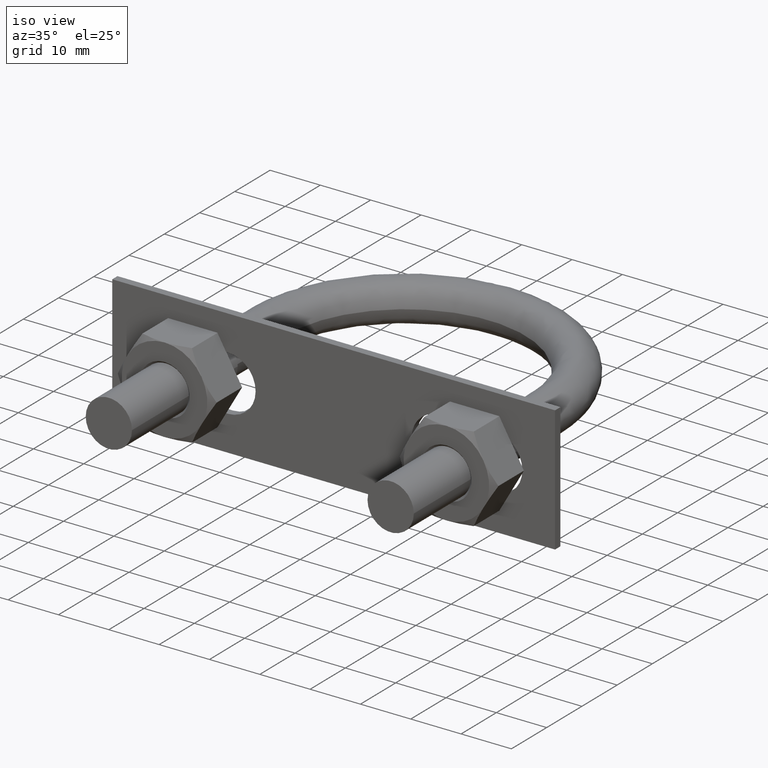
[diagram: clean part render]
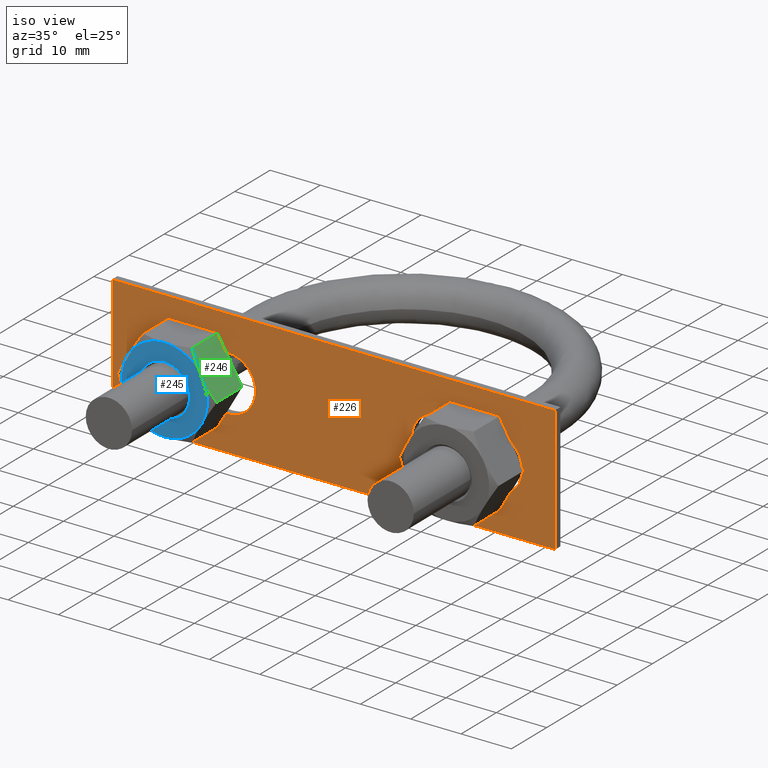
[diagram: same view with three faces highlighted in distinct colors, each labeled with its STEP entity id]
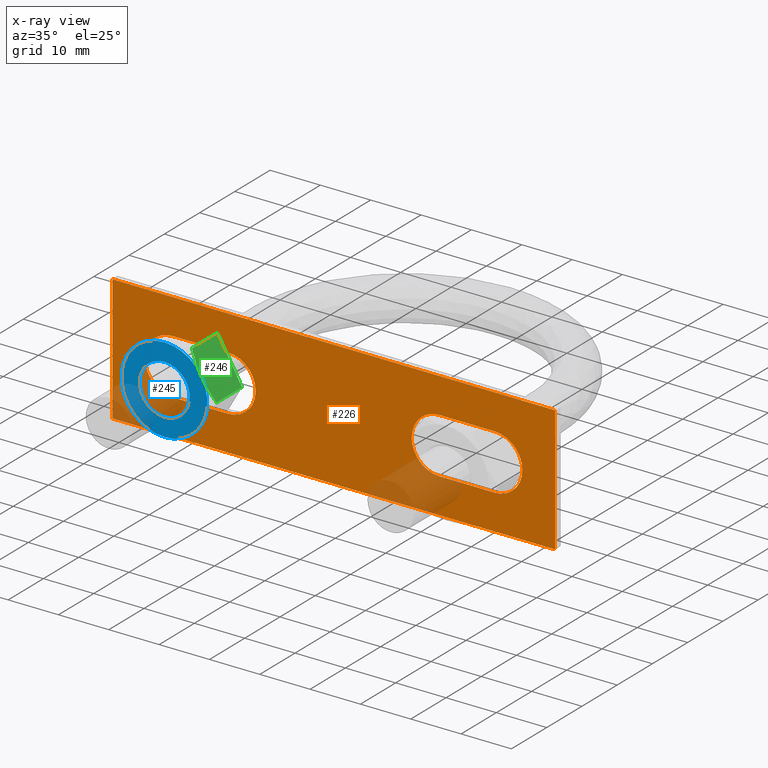
[diagram: x-ray of the same camera — body ghosted, the three highlighted faces saturated]
A machine part, iso view with three faces highlighted in distinct colors.
The next image is the same camera in x-ray (body ghosted, the three faces saturated) — at least one of them is partly hidden behind the body in this view.
Their STEP definitions:

[orange] entity #226 — the highlighted planar face has unit normal (0, -1, 0).
#226 = ADVANCED_FACE( '', ( #310, #311, #312 ), #313, .T. );
#310 = FACE_BOUND( '', #620, .T. );
#311 = FACE_OUTER_BOUND( '', #621, .T. );
#312 = FACE_BOUND( '', #622, .T. );
#313 = PLANE( '', #623 );
#620 = EDGE_LOOP( '', ( #792, #793, #794, #795, #796, #797 ) );
#621 = EDGE_LOOP( '', ( #798, #799, #800, #801 ) );
#622 = EDGE_LOOP( '', ( #802, #803, #804, #805, #806, #807 ) );
#623 = AXIS2_PLACEMENT_3D( '', #808, #809, #810 );
#792 = ORIENTED_EDGE( '', *, *, #1294, .F. );
#793 = ORIENTED_EDGE( '', *, *, #1295, .F. );
#794 = ORIENTED_EDGE( '', *, *, #1296, .F. );
#795 = ORIENTED_EDGE( '', *, *, #1297, .F. );
#796 = ORIENTED_EDGE( '', *, *, #1298, .F. );
#797 = ORIENTED_EDGE( '', *, *, #1299, .F. );
#798 = ORIENTED_EDGE( '', *, *, #1300, .T. );
#799 = ORIENTED_EDGE( '', *, *, #1301, .T. );
#800 = ORIENTED_EDGE( '', *, *, #1302, .T. );
#801 = ORIENTED_EDGE( '', *, *, #1303, .T. );
#802 = ORIENTED_EDGE( '', *, *, #1304, .F. );
#803 = ORIENTED_EDGE( '', *, *, #1305, .F. );
#804 = ORIENTED_EDGE( '', *, *, #1306, .F. );
#805 = ORIENTED_EDGE( '', *, *, #1307, .F. );
#806 = ORIENTED_EDGE( '', *, *, #1308, .F. );
#807 = ORIENTED_EDGE( '', *, *, #1309, .F. );
#808 = CARTESIAN_POINT( '', ( -44.0000000000000, -6.20000000000000, -12.5000000000000 ) );
#809 = DIRECTION( '', ( 0.000000000000000, -1.00000000000000, 6.12303176911189E-017 ) );
#810 = DIRECTION( '', ( 0.000000000000000, -6.12303176911189E-017, -1.00000000000000 ) );
#1294 = EDGE_CURVE( '', #1458, #1459, #1460, .F. );
#1295 = EDGE_CURVE( '', #1461, #1458, #1462, .F. );
#1296 = EDGE_CURVE( '', #1463, #1461, #1464, .F. );
#1297 = EDGE_CURVE( '', #1465, #1463, #1466, .F. );
#1298 = EDGE_CURVE( '', #1467, #1465, #1468, .F. );
#1299 = EDGE_CURVE( '', #1459, #1467, #1469, .F. );
#1300 = EDGE_CURVE( '', #1470, #1471, #1472, .T. );
#1301 = EDGE_CURVE( '', #1471, #1473, #1474, .T. );
#1302 = EDGE_CURVE( '', #1473, #1475, #1476, .T. );
#1303 = EDGE_CURVE( '', #1475, #1470, #1477, .T. );
#1304 = EDGE_CURVE( '', #1478, #1479, #1480, .F. );
#1305 = EDGE_CURVE( '', #1481, #1478, #1482, .F. );
#1306 = EDGE_CURVE( '', #1483, #1481, #1484, .F. );
#1307 = EDGE_CURVE( '', #1485, #1483, #1486, .F. );
#1308 = EDGE_CURVE( '', #1487, #1485, #1488, .F. );
#1309 = EDGE_CURVE( '', #1479, #1487, #1489, .F. );
#1458 = VERTEX_POINT( '', #1740 );
#1459 = VERTEX_POINT( '', #1741 );
#1460 = LINE( '', #1742, #1743 );
#1461 = VERTEX_POINT( '', #1744 );
#1462 = CIRCLE( '', #1745, 5.50000000000000 );
#1463 = VERTEX_POINT( '', #1746 );
#1464 = CIRCLE( '', #1747, 5.50000000000000 );
#1465 = VERTEX_POINT( '', #1748 );
#1466 = LINE( '', #1749, #1750 );
#1467 = VERTEX_POINT( '', #1751 );
#1468 = CIRCLE( '', #1752, 5.50000000000000 );
#1469 = CIRCLE( '', #1753, 5.50000000000000 );
#1470 = VERTEX_POINT( '', #1754 );
#1471 = VERTEX_POINT( '', #1755 );
#1472 = LINE( '', #1756, #1757 );
#1473 = VERTEX_POINT( '', #1758 );
#1474 = LINE( '', #1759, #1760 );
#1475 = VERTEX_POINT( '', #1761 );
#1476 = LINE( '', #1762, #1763 );
#1477 = LINE( '', #1764, #1765 );
#1478 = VERTEX_POINT( '', #1766 );
#1479 = VERTEX_POINT( '', #1767 );
#1480 = LINE( '', #1768, #1769 );
#1481 = VERTEX_POINT( '', #1770 );
#1482 = CIRCLE( '', #1771, 5.50000000000000 );
#1483 = VERTEX_POINT( '', #1772 );
#1484 = CIRCLE( '', #1773, 5.50000000000000 );
#1485 = VERTEX_POINT( '', #1774 );
#1486 = LINE( '', #1775, #1776 );
#1487 = VERTEX_POINT( '', #1777 );
#1488 = CIRCLE( '', #1778, 5.50000000000000 );
#1489 = CIRCLE( '', #1779, 5.50000000000000 );
#1740 = CARTESIAN_POINT( '', ( -32.0000000000000, -6.20000000000000, -5.50000000000000 ) );
#1741 = CARTESIAN_POINT( '', ( -21.0000000000000, -6.20000000000000, -5.50000000000000 ) );
#1742 = CARTESIAN_POINT( '', ( -32.0000000000000, -6.20000000000000, -5.50000000000000 ) );
#1743 = VECTOR( '', #2208, 1000.00000000000 );
#1744 = CARTESIAN_POINT( '', ( -37.5000000000000, -6.20000000000000, -2.23987420923604E-015 ) );
#1745 = AXIS2_PLACEMENT_3D( '', #2209, #2210, #2211 );
#1746 = CARTESIAN_POINT( '', ( -32.0000000000000, -6.20000000000000, 5.50000000000000 ) );
#1747 = AXIS2_PLACEMENT_3D( '', #2212, #2213, #2214 );
#1748 = CARTESIAN_POINT( '', ( -21.0000000000000, -6.20000000000000, 5.50000000000000 ) );
#1749 = CARTESIAN_POINT( '', ( -21.0000000000000, -6.20000000000000, 5.50000000000000 ) );
#1750 = VECTOR( '', #2215, 1000.00000000000 );
#1751 = CARTESIAN_POINT( '', ( -15.5000000000000, -6.20000000000000, -1.56634071463373E-015 ) );
#1752 = AXIS2_PLACEMENT_3D( '', #2216, #2217, #2218 );
#1753 = AXIS2_PLACEMENT_3D( '', #2219, #2220, #2221 );
#1754 = CARTESIAN_POINT( '', ( -44.0000000000000, -6.20000000000000, 12.5000000000000 ) );
#1755 = CARTESIAN_POINT( '', ( -44.0000000000000, -6.20000000000000, -12.5000000000000 ) );
#1756 = CARTESIAN_POINT( '', ( -44.0000000000000, -6.20000000000000, 12.5000000000000 ) );
#1757 = VECTOR( '', #2222, 1000.00000000000 );
#1758 = CARTESIAN_POINT( '', ( 44.0000000000000, -6.20000000000000, -12.5000000000000 ) );
#1759 = CARTESIAN_POINT( '', ( -44.0000000000000, -6.20000000000000, -12.5000000000000 ) );
#1760 = VECTOR( '', #2223, 1000.00000000000 );
#1761 = CARTESIAN_POINT( '', ( 44.0000000000000, -6.20000000000000, 12.5000000000000 ) );
#1762 = CARTESIAN_POINT( '', ( 44.0000000000000, -6.20000000000000, -12.5000000000000 ) );
#1763 = VECTOR( '', #2224, 1000.00000000000 );
#1764 = CARTESIAN_POINT( '', ( 44.0000000000000, -6.20000000000000, 12.5000000000000 ) );
#1765 = VECTOR( '', #2225, 1000.00000000000 );
#1766 = CARTESIAN_POINT( '', ( 21.0000000000000, -6.20000000000000, -5.50000000000000 ) );
#1767 = CARTESIAN_POINT( '', ( 32.0000000000000, -6.20000000000000, -5.50000000000000 ) );
#1768 = CARTESIAN_POINT( '', ( 21.0000000000000, -6.20000000000000, -5.50000000000000 ) );
#1769 = VECTOR( '', #2226, 1000.00000000000 );
#1770 = CARTESIAN_POINT( '', ( 15.5000000000000, -6.20000000000000, -2.23987420923604E-015 ) );
#1771 = AXIS2_PLACEMENT_3D( '', #2227, #2228, #2229 );
#1772 = CARTESIAN_POINT( '', ( 21.0000000000000, -6.20000000000000, 5.50000000000000 ) );
#1773 = AXIS2_PLACEMENT_3D( '', #2230, #2231, #2232 );
#1774 = CARTESIAN_POINT( '', ( 32.0000000000000, -6.20000000000000, 5.50000000000000 ) );
#1775 = CARTESIAN_POINT( '', ( 32.0000000000000, -6.20000000000000, 5.50000000000000 ) );
#1776 = VECTOR( '', #2233, 1000.00000000000 );
#1777 = CARTESIAN_POINT( '', ( 37.5000000000000, -6.20000000000000, -1.56634071463373E-015 ) );
#1778 = AXIS2_PLACEMENT_3D( '', #2234, #2235, #2236 );
#1779 = AXIS2_PLACEMENT_3D( '', #2237, #2238, #2239 );
#2208 = DIRECTION( '', ( -1.00000000000000, -1.65175178900686E-081, -2.69760447322722E-065 ) );
#2209 = CARTESIAN_POINT( '', ( -32.0000000000000, -6.20000000000000, -1.73472408828431E-015 ) );
#2210 = DIRECTION( '', ( 0.000000000000000, 1.00000000000000, -6.12303176911189E-017 ) );
#2211 = DIRECTION( '', ( 0.000000000000000, 6.12303176911189E-017, 1.00000000000000 ) );
#2212 = CARTESIAN_POINT( '', ( -32.0000000000000, -6.20000000000000, -1.73472408828431E-015 ) );
#2213 = DIRECTION( '', ( 0.000000000000000, 1.00000000000000, -6.12303176911189E-017 ) );
#2214 = DIRECTION( '', ( 0.000000000000000, 6.12303176911189E-017, 1.00000000000000 ) );
#2215 = DIRECTION( '', ( 1.00000000000000, 1.65175178900686E-081, 2.69760447322722E-065 ) );
#2216 = CARTESIAN_POINT( '', ( -21.0000000000000, -6.20000000000000, -1.73472408828431E-015 ) );
#2217 = DIRECTION( '', ( 0.000000000000000, 1.00000000000000, -6.12303176911189E-017 ) );
#2218 = DIRECTION( '', ( 0.000000000000000, 6.12303176911189E-017, 1.00000000000000 ) );
#2219 = CARTESIAN_POINT( '', ( -21.0000000000000, -6.20000000000000, -1.73472408828431E-015 ) );
#2220 = DIRECTION( '', ( 0.000000000000000, 1.00000000000000, -6.12303176911189E-017 ) );
#2221 = DIRECTION( '', ( 0.000000000000000, 6.12303176911189E-017, 1.00000000000000 ) );
#2222 = DIRECTION( '', ( 0.000000000000000, -6.12303176911189E-017, -1.00000000000000 ) );
#2223 = DIRECTION( '', ( 1.00000000000000, 0.000000000000000, 0.000000000000000 ) );
#2224 = DIRECTION( '', ( 0.000000000000000, 6.12303176911189E-017, 1.00000000000000 ) );
#2225 = DIRECTION( '', ( -1.00000000000000, 0.000000000000000, 0.000000000000000 ) );
#2226 = DIRECTION( '', ( -1.00000000000000, 0.000000000000000, 0.000000000000000 ) );
#2227 = CARTESIAN_POINT( '', ( 21.0000000000000, -6.20000000000000, -1.73472408828431E-015 ) );
#2228 = DIRECTION( '', ( 0.000000000000000, 1.00000000000000, -6.12303176911189E-017 ) );
#2229 = DIRECTION( '', ( 0.000000000000000, 6.12303176911189E-017, 1.00000000000000 ) );
#2230 = CARTESIAN_POINT( '', ( 21.0000000000000, -6.20000000000000, -1.73472408828431E-015 ) );
#2231 = DIRECTION( '', ( 0.000000000000000, 1.00000000000000, -6.12303176911189E-017 ) );
#2232 = DIRECTION( '', ( 0.000000000000000, 6.12303176911189E-017, 1.00000000000000 ) );
#2233 = DIRECTION( '', ( 1.00000000000000, 0.000000000000000, 0.000000000000000 ) );
#2234 = CARTESIAN_POINT( '', ( 32.0000000000000, -6.20000000000000, -1.73472408828431E-015 ) );
#2235 = DIRECTION( '', ( 0.000000000000000, 1.00000000000000, -6.12303176911189E-017 ) );
#2236 = DIRECTION( '', ( 0.000000000000000, 6.12303176911189E-017, 1.00000000000000 ) );
#2237 = CARTESIAN_POINT( '', ( 32.0000000000000, -6.20000000000000, -1.73472408828431E-015 ) );
#2238 = DIRECTION( '', ( 0.000000000000000, 1.00000000000000, -6.12303176911189E-017 ) );
#2239 = DIRECTION( '', ( 0.000000000000000, 6.12303176911189E-017, 1.00000000000000 ) );

[blue] entity #245 — the highlighted planar face has unit normal (0, 1, 0).
#245 = ADVANCED_FACE( '', ( #352, #353 ), #354, .F. );
#352 = FACE_OUTER_BOUND( '', #662, .T. );
#353 = FACE_BOUND( '', #663, .T. );
#354 = PLANE( '', #664 );
#662 = EDGE_LOOP( '', ( #949, #950, #951, #952, #953, #954 ) );
#663 = EDGE_LOOP( '', ( #955 ) );
#664 = AXIS2_PLACEMENT_3D( '', #956, #957, #958 );
#949 = ORIENTED_EDGE( '', *, *, #1346, .F. );
#950 = ORIENTED_EDGE( '', *, *, #1347, .F. );
#951 = ORIENTED_EDGE( '', *, *, #1348, .F. );
#952 = ORIENTED_EDGE( '', *, *, #1349, .F. );
#953 = ORIENTED_EDGE( '', *, *, #1344, .F. );
#954 = ORIENTED_EDGE( '', *, *, #1350, .F. );
#955 = ORIENTED_EDGE( '', *, *, #1351, .T. );
#956 = CARTESIAN_POINT( '', ( -28.0000000000000, -14.2000000000000, 3.96143216892173E-065 ) );
#957 = DIRECTION( '', ( 6.12303176911189E-017, 1.00000000000000, 0.000000000000000 ) );
#958 = DIRECTION( '', ( 3.74915180455534E-033, -2.29561756065155E-049, -1.00000000000000 ) );
#1344 = EDGE_CURVE( '', #1541, #1543, #1544, .T. );
#1346 = EDGE_CURVE( '', #1546, #1547, #1548, .T. );
#1347 = EDGE_CURVE( '', #1549, #1546, #1550, .T. );
#1348 = EDGE_CURVE( '', #1551, #1549, #1552, .T. );
#1349 = EDGE_CURVE( '', #1543, #1551, #1553, .T. );
#1350 = EDGE_CURVE( '', #1547, #1541, #1554, .T. );
#1351 = EDGE_CURVE( '', #1555, #1555, #1556, .T. );
#1541 = VERTEX_POINT( '', #1855 );
#1543 = VERTEX_POINT( '', #1862 );
#1544 = CIRCLE( '', #1863, 8.50000000000000 );
#1546 = VERTEX_POINT( '', #1872 );
#1547 = VERTEX_POINT( '', #1873 );
#1548 = CIRCLE( '', #1874, 8.50000000000000 );
#1549 = VERTEX_POINT( '', #1875 );
#1550 = CIRCLE( '', #1876, 8.50000000000000 );
#1551 = VERTEX_POINT( '', #1877 );
#1552 = CIRCLE( '', #1878, 8.50000000000000 );
#1553 = CIRCLE( '', #1879, 8.50000000000000 );
#1554 = CIRCLE( '', #1880, 8.50000000000000 );
#1555 = VERTEX_POINT( '', #1881 );
#1556 = CIRCLE( '', #1882, 5.00000000000000 );
#1855 = CARTESIAN_POINT( '', ( -28.0000000000000, -14.2000000000000, 8.50000000000000 ) );
#1862 = CARTESIAN_POINT( '', ( -20.6387840678323, -14.2000000000000, 4.25000000000000 ) );
#1863 = AXIS2_PLACEMENT_3D( '', #2291, #2292, #2293 );
#1872 = CARTESIAN_POINT( '', ( -35.3612159321677, -14.2000000000000, -4.25000000000000 ) );
#1873 = CARTESIAN_POINT( '', ( -35.3612159321677, -14.2000000000000, 4.25000000000000 ) );
#1874 = AXIS2_PLACEMENT_3D( '', #2294, #2295, #2296 );
#1875 = CARTESIAN_POINT( '', ( -28.0000000000000, -14.2000000000000, -8.50000000000000 ) );
#1876 = AXIS2_PLACEMENT_3D( '', #2297, #2298, #2299 );
#1877 = CARTESIAN_POINT( '', ( -20.6387840678323, -14.2000000000000, -4.25000000000000 ) );
#1878 = AXIS2_PLACEMENT_3D( '', #2300, #2301, #2302 );
#1879 = AXIS2_PLACEMENT_3D( '', #2303, #2304, #2305 );
#1880 = AXIS2_PLACEMENT_3D( '', #2306, #2307, #2308 );
#1881 = CARTESIAN_POINT( '', ( -28.0000000000000, -14.2000000000000, -5.00000000000000 ) );
#1882 = AXIS2_PLACEMENT_3D( '', #2309, #2310, #2311 );
#2291 = CARTESIAN_POINT( '', ( -28.0000000000000, -14.2000000000000, 3.96143216892173E-065 ) );
#2292 = DIRECTION( '', ( 6.12303176911189E-017, 1.00000000000000, 6.72903901152805E-065 ) );
#2293 = DIRECTION( '', ( 3.74915180455534E-033, -2.29561756065155E-049, -1.00000000000000 ) );
#2294 = CARTESIAN_POINT( '', ( -28.0000000000000, -14.2000000000000, 3.96143216892173E-065 ) );
#2295 = DIRECTION( '', ( 6.12303176911189E-017, 1.00000000000000, 6.72903901152805E-065 ) );
#2296 = DIRECTION( '', ( 3.74915180455534E-033, -2.29561756065155E-049, -1.00000000000000 ) );
#2297 = CARTESIAN_POINT( '', ( -28.0000000000000, -14.2000000000000, 3.96143216892173E-065 ) );
#2298 = DIRECTION( '', ( 6.12303176911189E-017, 1.00000000000000, 6.72903901152805E-065 ) );
#2299 = DIRECTION( '', ( 3.74915180455534E-033, -2.29561756065155E-049, -1.00000000000000 ) );
#2300 = CARTESIAN_POINT( '', ( -28.0000000000000, -14.2000000000000, 3.96143216892173E-065 ) );
#2301 = DIRECTION( '', ( 6.12303176911189E-017, 1.00000000000000, 6.72903901152805E-065 ) );
#2302 = DIRECTION( '', ( 3.74915180455534E-033, -2.29561756065155E-049, -1.00000000000000 ) );
#2303 = CARTESIAN_POINT( '', ( -28.0000000000000, -14.2000000000000, 3.96143216892173E-065 ) );
#2304 = DIRECTION( '', ( 6.12303176911189E-017, 1.00000000000000, 6.72903901152805E-065 ) );
#2305 = DIRECTION( '', ( 3.74915180455534E-033, -2.29561756065155E-049, -1.00000000000000 ) );
#2306 = CARTESIAN_POINT( '', ( -28.0000000000000, -14.2000000000000, 3.96143216892173E-065 ) );
#2307 = DIRECTION( '', ( 6.12303176911189E-017, 1.00000000000000, 6.72903901152805E-065 ) );
#2308 = DIRECTION( '', ( 3.74915180455534E-033, -2.29561756065155E-049, -1.00000000000000 ) );
#2309 = CARTESIAN_POINT( '', ( -28.0000000000000, -14.2000000000000, 3.96143216892173E-065 ) );
#2310 = DIRECTION( '', ( 6.12303176911189E-017, 1.00000000000000, 4.86173068582902E-065 ) );
#2311 = DIRECTION( '', ( 3.74915180455535E-033, -2.29561756065155E-049, -1.00000000000000 ) );

[green] entity #246 — the highlighted planar face has unit normal (-0.866, 0, -0.5).
#246 = ADVANCED_FACE( '', ( #355 ), #356, .F. );
#355 = FACE_OUTER_BOUND( '', #665, .T. );
#356 = PLANE( '', #666 );
#665 = EDGE_LOOP( '', ( #959, #960, #961, #962, #963 ) );
#666 = AXIS2_PLACEMENT_3D( '', #964, #965, #966 );
#959 = ORIENTED_EDGE( '', *, *, #1345, .F. );
#960 = ORIENTED_EDGE( '', *, *, #1352, .F. );
#961 = ORIENTED_EDGE( '', *, *, #1353, .F. );
#962 = ORIENTED_EDGE( '', *, *, #1354, .F. );
#963 = ORIENTED_EDGE( '', *, *, #1355, .F. );
#964 = CARTESIAN_POINT( '', ( -23.0925227118882, -6.20000000000000, 8.50000000000000 ) );
#965 = DIRECTION( '', ( -0.866025403784439, 5.30270106023007E-017, -0.500000000000000 ) );
#966 = DIRECTION( '', ( -0.500000000000000, 3.06151588455594E-017, 0.866025403784439 ) );
#1345 = EDGE_CURVE( '', #1543, #1539, #1545, .T. );
#1352 = EDGE_CURVE( '', #1557, #1543, #1558, .T. );
#1353 = EDGE_CURVE( '', #1559, #1557, #1560, .F. );
#1354 = EDGE_CURVE( '', #1561, #1559, #1562, .T. );
#1355 = EDGE_CURVE( '', #1539, #1561, #1563, .T. );
#1539 = VERTEX_POINT( '', #1853 );
#1543 = VERTEX_POINT( '', #1862 );
#1545 = B_SPLINE_CURVE_WITH_KNOTS( '', 3, ( #1864, #1865, #1866, #1867, #1868, #1869, #1870, #1871 ), .UNSPECIFIED., .F., .F., ( 4, 2, 2, 4 ), ( 0.00493506423428099, 0.00616384870526321, 0.00739263317624543, 0.00985020211820987 ), .UNSPECIFIED. );
#1557 = VERTEX_POINT( '', #1883 );
#1558 = B_SPLINE_CURVE_WITH_KNOTS( '', 3, ( #1884, #1885, #1886, #1887, #1888, #1889 ), .UNSPECIFIED., .F., .F., ( 4, 2, 4 ), ( 4.83064900410421E-007, 0.00246777364959070, 0.00493506423428099 ), .UNSPECIFIED. );
#1559 = VERTEX_POINT( '', #1890 );
#1560 = LINE( '', #1891, #1892 );
#1561 = VERTEX_POINT( '', #1893 );
#1562 = LINE( '', #1894, #1895 );
#1563 = LINE( '', #1896, #1897 );
#1853 = CARTESIAN_POINT( '', ( -23.0775337474837, -13.4494446500535, 8.47403835209862 ) );
#1862 = CARTESIAN_POINT( '', ( -20.6387840678323, -14.2000000000000, 4.25000000000000 ) );
#1864 = CARTESIAN_POINT( '', ( -20.6387840678323, -14.2000000000000, 4.25000000000000 ) );
#1865 = CARTESIAN_POINT( '', ( -20.8456385394390, -14.2000000000000, 4.60828245459559 ) );
#1866 = CARTESIAN_POINT( '', ( -21.0535275305460, -14.1822887918237, 4.96835674952724 ) );
#1867 = CARTESIAN_POINT( '', ( -21.4647840563434, -14.1136978063788, 5.68067394715264 ) );
#1868 = CARTESIAN_POINT( '', ( -21.6690452347238, -14.0628883495806, 6.03446468612132 ) );
#1869 = CARTESIAN_POINT( '', ( -22.2782186306658, -13.8668505986087, 7.08958395851212 ) );
#1870 = CARTESIAN_POINT( '', ( -22.6795341003769, -13.6781746872645, 7.78468274191512 ) );
#1871 = CARTESIAN_POINT( '', ( -23.0775337474837, -13.4494446500535, 8.47403835209862 ) );
#1883 = CARTESIAN_POINT( '', ( -18.2000343881808, -13.4494446500535, 0.0259616479013807 ) );
#1884 = CARTESIAN_POINT( '', ( -18.2000343881808, -13.4494446500535, 0.0259616479013819 ) );
#1885 = CARTESIAN_POINT( '', ( -18.5990867524617, -13.6787796828723, 0.717140617716315 ) );
#1886 = CARTESIAN_POINT( '', ( -19.0010212207036, -13.8675474634560, 1.41331153802454 ) );
#1887 = CARTESIAN_POINT( '', ( -19.8131667591043, -14.1285851459414, 2.81998887367487 ) );
#1888 = CARTESIAN_POINT( '', ( -20.2234385762114, -14.2000000000000, 3.53060050581790 ) );
#1889 = CARTESIAN_POINT( '', ( -20.6387840678323, -14.2000000000000, 4.25000000000000 ) );
#1890 = CARTESIAN_POINT( '', ( -18.2000343881808, -6.20000000000000, 0.0259616479013815 ) );
#1891 = CARTESIAN_POINT( '', ( -18.2000343881808, -6.20000000000000, 0.0259616479013807 ) );
#1892 = VECTOR( '', #2312, 1000.00000000000 );
#1893 = CARTESIAN_POINT( '', ( -23.0775337474837, -6.20000000000000, 8.47403835209862 ) );
#1894 = CARTESIAN_POINT( '', ( -23.0887840678323, -6.20000000000000, 8.49352447854375 ) );
#1895 = VECTOR( '', #2313, 1000.00000000000 );
#1896 = CARTESIAN_POINT( '', ( -23.0775337474837, -6.20000000000000, 8.47403835209862 ) );
#1897 = VECTOR( '', #2314, 1000.00000000000 );
#2312 = DIRECTION( '', ( 6.12303176911189E-017, 1.00000000000000, -4.95179021115217E-066 ) );
#2313 = DIRECTION( '', ( 0.500000000000000, -3.06151588455594E-017, -0.866025403784439 ) );
#2314 = DIRECTION( '', ( 6.12303176911189E-017, 1.00000000000000, -4.95179021115217E-066 ) );